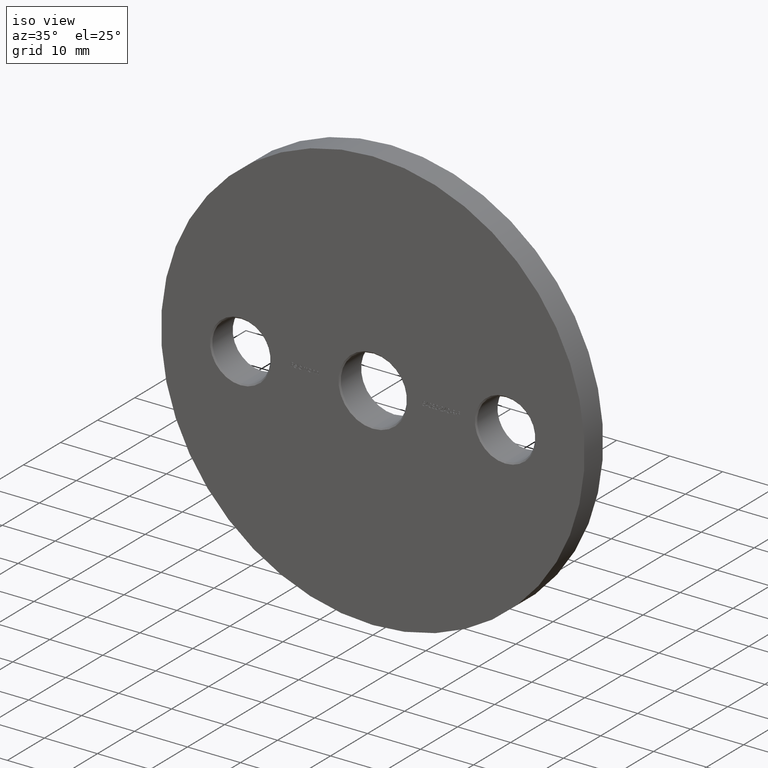
[diagram: clean part render]
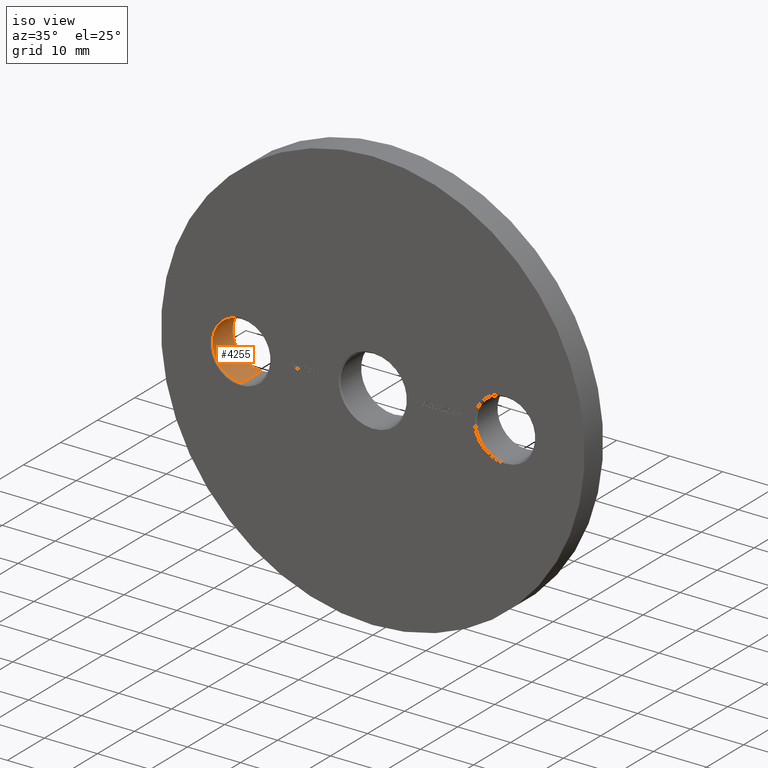
[diagram: same view with one face highlighted and labeled with its STEP entity id]
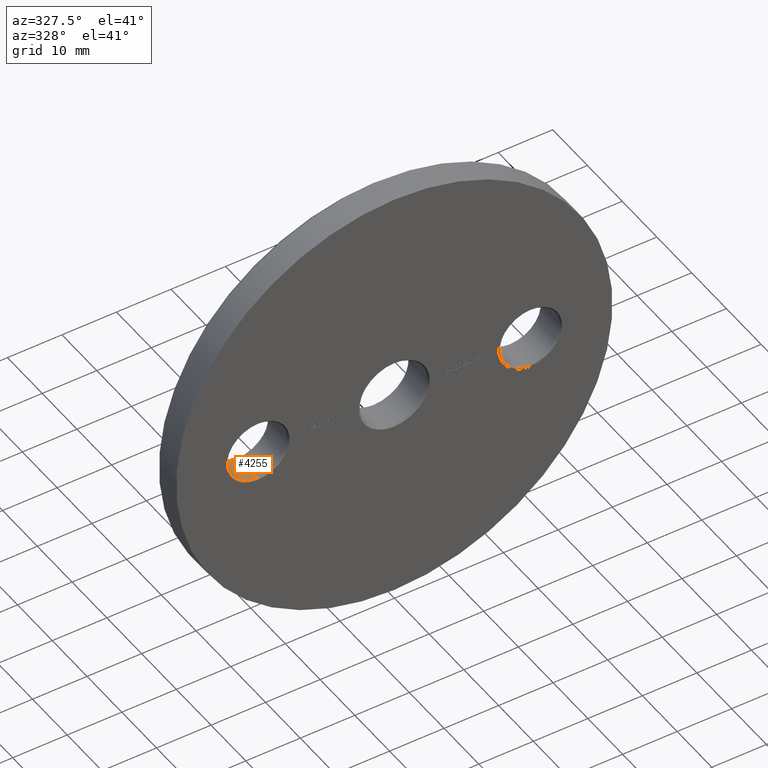
[diagram: same view with one face highlighted and labeled with its STEP entity id]
A machine part, iso view. The second image highlights one B-rep face of the part: STEP entity #4255.
A second angle (auxiliary view) of the same face is appended — the face is thin or edge-on in the first view.
In plain terms, the highlighted cylindrical surface (edge-blend (fillet) strip) has radius 5.5 mm, axis along (-0, -1, -0).
Its self-contained STEP definition (entity closure, byte-faithful):
#122 = CARTESIAN_POINT ( 'NONE',  ( -25.00000000000000000, 5.750000000000000000, 0.000000000000000000 ) ) ;
#409 = CYLINDRICAL_SURFACE ( 'NONE', #7256, 5.499999999999996447 ) ;
#1086 = DIRECTION ( 'NONE',  ( 0.000000000000000000, 1.000000000000000000, 0.000000000000000000 ) ) ;
#1891 = LINE ( 'NONE', #7991, #14772 ) ;
#2725 = AXIS2_PLACEMENT_3D ( 'NONE', #122, #1086, #11812 ) ;
#3273 = DIRECTION ( 'NONE',  ( -0.000000000000000000, -1.000000000000000000, -0.000000000000000000 ) ) ;
#3409 = CARTESIAN_POINT ( 'NONE',  ( -25.00000000000000000, 0.2500000000000036637, 0.000000000000000000 ) ) ;
#3685 = ORIENTED_EDGE ( 'NONE', *, *, #11597, .F. ) ;
#3740 = CIRCLE ( 'NONE', #2725, 5.499999999999996447 ) ;
#4255 = ADVANCED_FACE ( 'NONE', ( #13431 ), #409, .F. ) ;
#4462 = DIRECTION ( 'NONE',  ( -0.000000000000000000, -1.000000000000000000, -0.000000000000000000 ) ) ;
#4556 = ORIENTED_EDGE ( 'NONE', *, *, #6482, .T. ) ;
#5523 = CARTESIAN_POINT ( 'NONE',  ( -25.00000000000000000, 5.750000000000000000, 5.499999999999996447 ) ) ;
#6071 = DIRECTION ( 'NONE',  ( -0.000000000000000000, -1.000000000000000000, -0.000000000000000000 ) ) ;
#6222 = AXIS2_PLACEMENT_3D ( 'NONE', #3409, #11765, #15146 ) ;
#6482 = EDGE_CURVE ( 'NONE', #7913, #8579, #12931, .T. ) ;
#6612 = VERTEX_POINT ( 'NONE', #12404 ) ;
#6633 = CARTESIAN_POINT ( 'NONE',  ( -25.00000000000000000, 0.2500000000000036637, 5.499999999999996447 ) ) ;
#6892 = ORIENTED_EDGE ( 'NONE', *, *, #10827, .T. ) ;
#7256 = AXIS2_PLACEMENT_3D ( 'NONE', #12928, #3273, #11627 ) ;
#7532 = CARTESIAN_POINT ( 'NONE',  ( -25.00000000000000000, 0.2500000000000036637, -5.499999999999996447 ) ) ;
#7913 = VERTEX_POINT ( 'NONE', #5523 ) ;
#7991 = CARTESIAN_POINT ( 'NONE',  ( -25.00000000000000000, 6.000000000000000000, -5.499999999999996447 ) ) ;
#8579 = VERTEX_POINT ( 'NONE', #6633 ) ;
#9689 = CARTESIAN_POINT ( 'NONE',  ( -25.00000000000000000, 6.000000000000000000, 5.499999999999996447 ) ) ;
#10827 = EDGE_CURVE ( 'NONE', #8579, #13087, #12708, .T. ) ;
#10920 = EDGE_CURVE ( 'NONE', #6612, #7913, #3740, .T. ) ;
#11597 = EDGE_CURVE ( 'NONE', #6612, #13087, #1891, .T. ) ;
#11627 = DIRECTION ( 'NONE',  ( 0.000000000000000000, 0.000000000000000000, -1.000000000000000000 ) ) ;
#11765 = DIRECTION ( 'NONE',  ( -0.000000000000000000, -1.000000000000000000, -0.000000000000000000 ) ) ;
#11812 = DIRECTION ( 'NONE',  ( 0.000000000000000000, 0.000000000000000000, 1.000000000000000000 ) ) ;
#12404 = CARTESIAN_POINT ( 'NONE',  ( -25.00000000000000000, 5.750000000000000000, -5.499999999999996447 ) ) ;
#12708 = CIRCLE ( 'NONE', #6222, 5.499999999999996447 ) ;
#12928 = CARTESIAN_POINT ( 'NONE',  ( -25.00000000000000000, 6.000000000000000000, 0.000000000000000000 ) ) ;
#12931 = LINE ( 'NONE', #9689, #14825 ) ;
#12983 = EDGE_LOOP ( 'NONE', ( #14452, #4556, #6892, #3685 ) ) ;
#13087 = VERTEX_POINT ( 'NONE', #7532 ) ;
#13431 = FACE_OUTER_BOUND ( 'NONE', #12983, .T. ) ;
#14452 = ORIENTED_EDGE ( 'NONE', *, *, #10920, .T. ) ;
#14772 = VECTOR ( 'NONE', #4462, 1000.000000000000000 ) ;
#14825 = VECTOR ( 'NONE', #6071, 1000.000000000000000 ) ;
#15146 = DIRECTION ( 'NONE',  ( 0.000000000000000000, 0.000000000000000000, 1.000000000000000000 ) ) ;